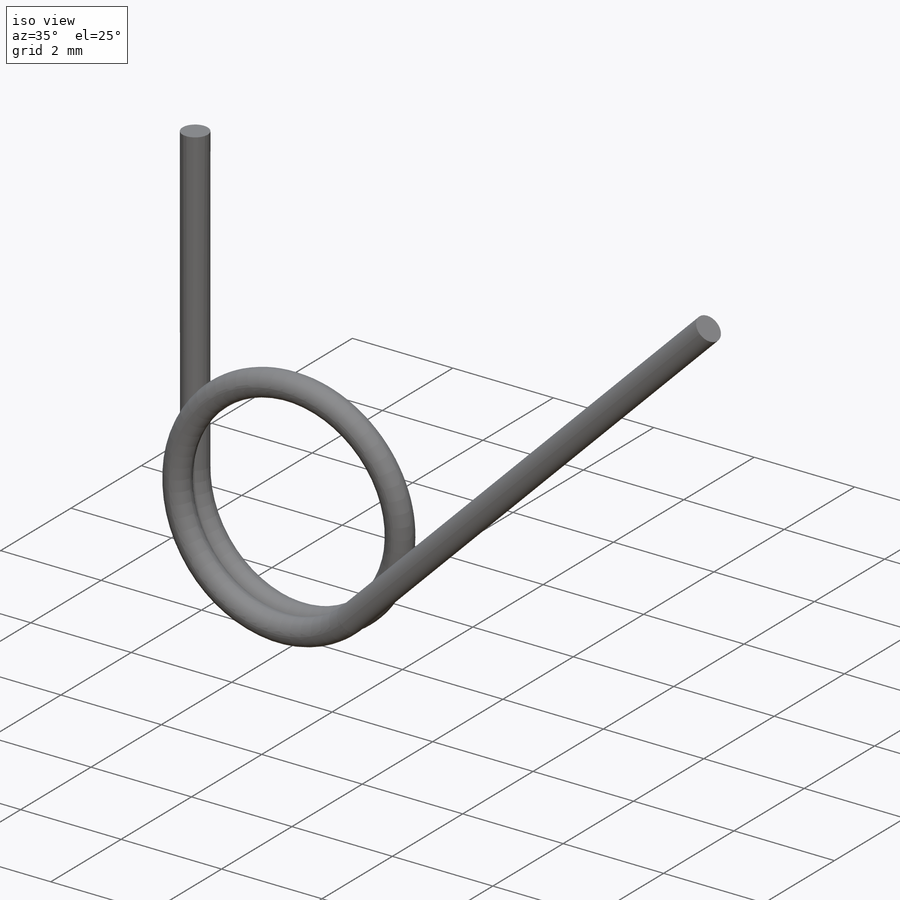
[diagram: iso view]
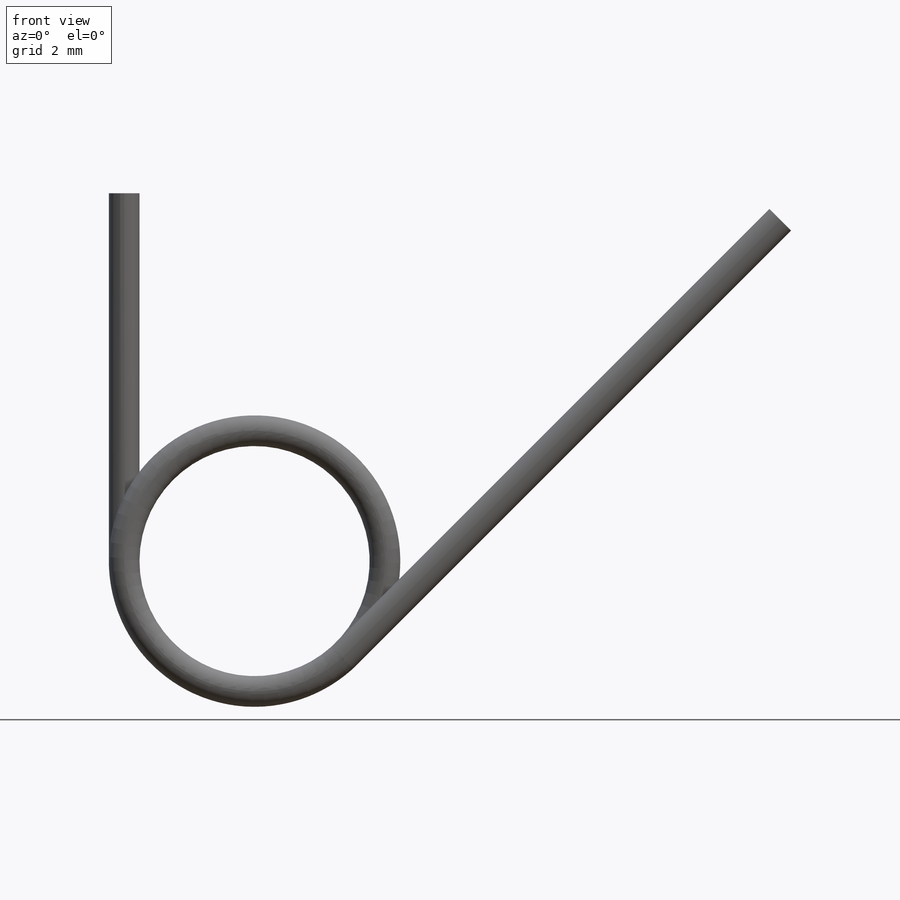
[diagram: front view]
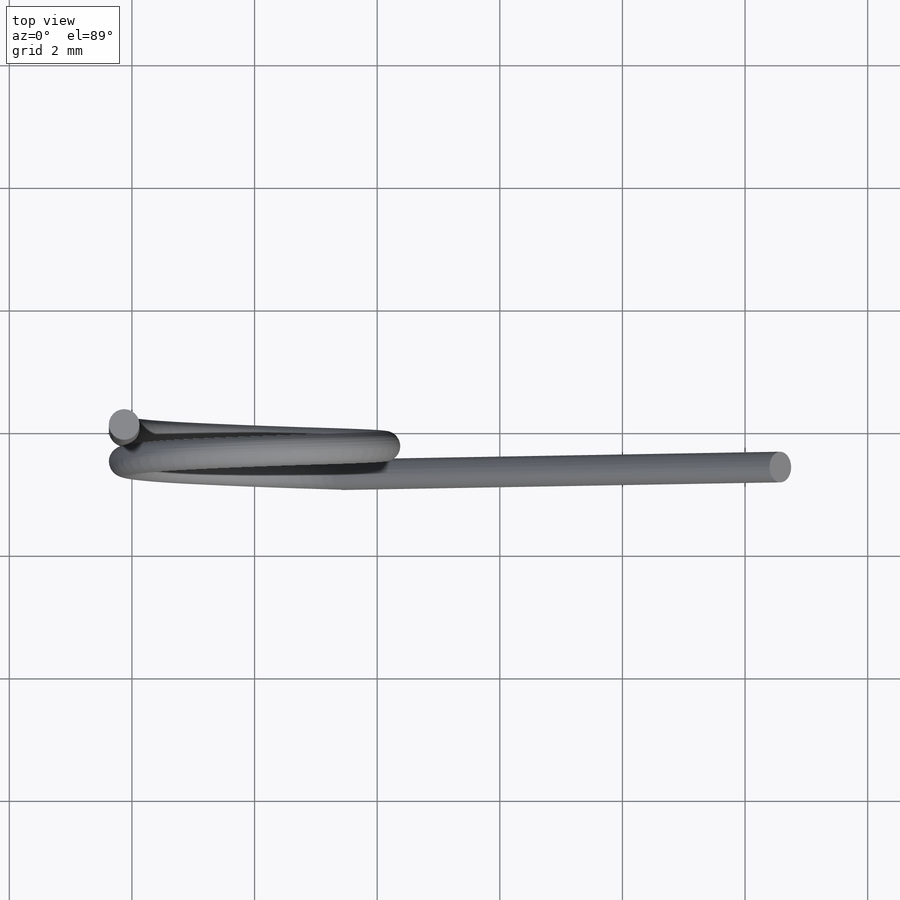
[diagram: top view]
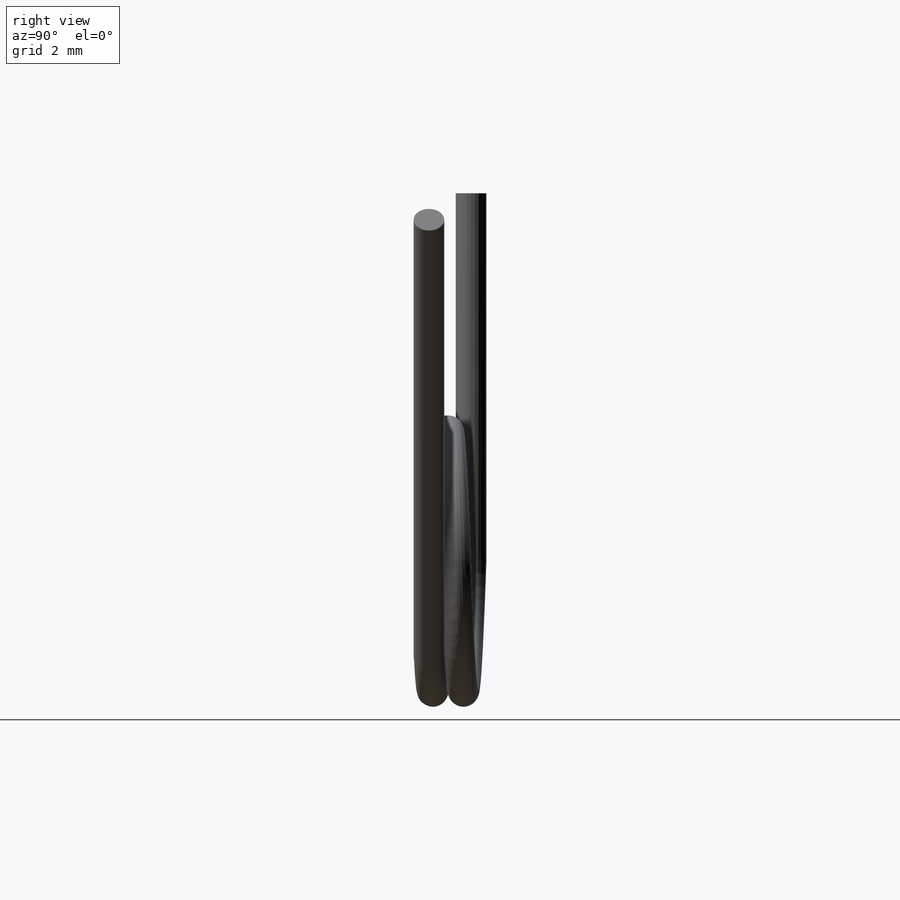
[diagram: right view]
SOLIDWORKS PART (.sldprt)
format: sldprt  version: not decoded by parser v0  size: 336,896 bytes
history: native  units: mm
features: sketch x4, extrude x2, material x1, helix x1, sweep x1, plane x1 (+12 scaffold rows collapsed)
feature tree (22):
  scaffold x12  (default folders/planes/origin — collapsed)
  material  "Material <not specified>"
  sketch  "Sketch1"  dims[D1=2.6mm D2=5.5mm D3=4.253mm]
  helix  "Helix/Spiral1"  Pitch=0.6875mm
  sketch  "Sketch2"  dims[D1=0.5mm]
  sweep  "Sweep1"
  sketch  "Sketch3"  dims[D1=0.0mm]
  extrude  "Boss-Extrude1"  Depth=6mm
  sketch  "Sketch5"  dims[D1=0.0mm]
  plane  "Plane1"
  extrude  "Boss-Extrude4"  Depth=10mm
decode coverage: 7 of 8 modeling features carry decoded parameters
note: suppression state not decoded; provenance and decode notes live in map.json
